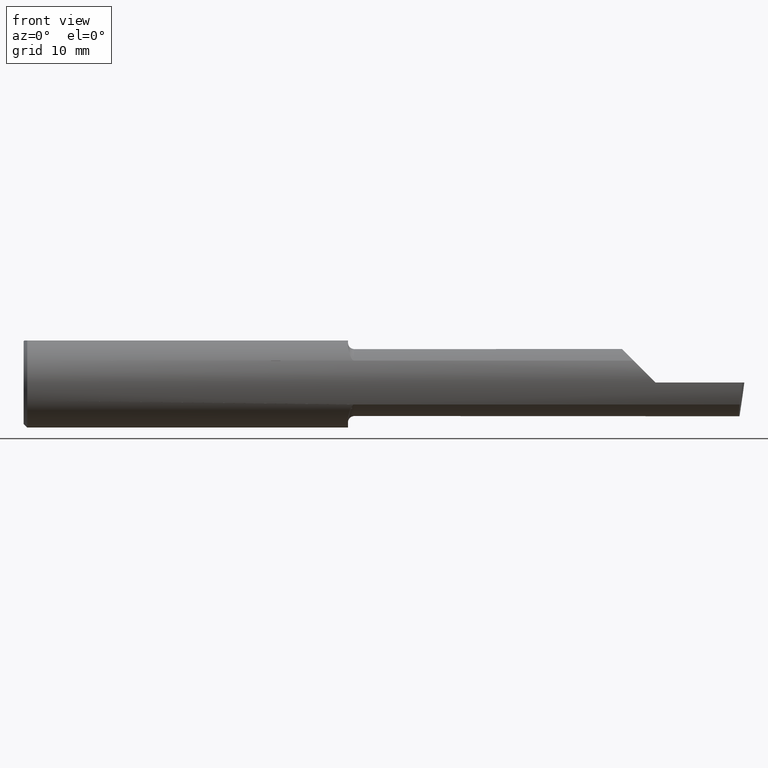
[diagram: clean part render]
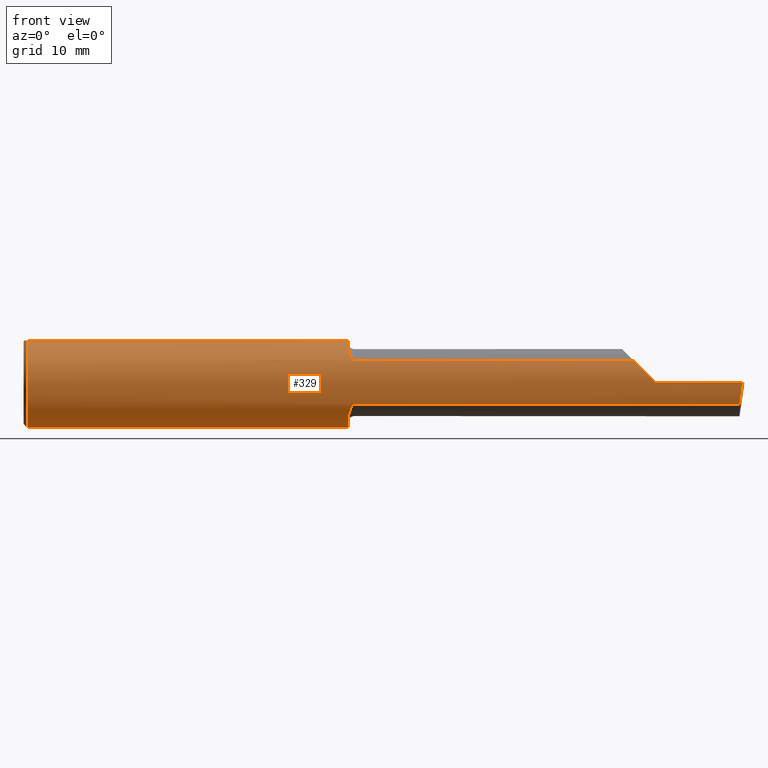
[diagram: same view with one face highlighted and labeled with its STEP entity id]
A machine part, front view. The second image highlights one B-rep face of the part: STEP entity #329.
In plain terms, the highlighted cylindrical surface (partial cylindrical patch) has radius 4.7587 mm, axis along (-1, -0, -0).
Its self-contained STEP definition (entity closure, byte-faithful):
#8 = VERTEX_POINT ( 'NONE', #289 ) ;
#14 = EDGE_CURVE ( 'NONE', #393, #8, #505, .T. ) ;
#22 = CYLINDRICAL_SURFACE ( 'NONE', #203, 0.1873499999999999888 ) ;
#23 = EDGE_CURVE ( 'NONE', #37, #525, #187, .T. ) ;
#36 = DIRECTION ( 'NONE',  ( 1.000000000000000000, 5.691349986800549142E-18, 0.0000000000000000000 ) ) ;
#37 = VERTEX_POINT ( 'NONE', #223 ) ;
#50 = VECTOR ( 'NONE', #416, 39.37007874015748143 ) ;
#51 = DIRECTION ( 'NONE',  ( 0.0000000000000000000, 1.000000000000000000, 0.0000000000000000000 ) ) ;
#83 = DIRECTION ( 'NONE',  ( -1.000000000000000000, -0.0000000000000000000, -0.0000000000000000000 ) ) ;
#91 = LINE ( 'NONE', #585, #50 ) ;
#92 = CARTESIAN_POINT ( 'NONE',  ( 1.350000000000000533, -0.1045082199249680460, -0.1557306416133594773 ) ) ;
#107 = ORIENTED_EDGE ( 'NONE', *, *, #153, .F. ) ;
#111 = ORIENTED_EDGE ( 'NONE', *, *, #421, .T. ) ;
#113 = CARTESIAN_POINT ( 'NONE',  ( 1.367975941902153769, -0.1612443294219079171, -0.09540922431498234657 ) ) ;
#115 = CARTESIAN_POINT ( 'NONE',  ( 2.538695632261437130, -0.1635956445993032027, 0.09130436773856151489 ) ) ;
#118 = CARTESIAN_POINT ( 'NONE',  ( 0.01499999999999997863, -0.06597272163553657975, 0.1753499999999999781 ) ) ;
#119 = EDGE_CURVE ( 'NONE', #525, #408, #159, .T. ) ;
#130 = CARTESIAN_POINT ( 'NONE',  ( 1.350000000000000089, 0.0000000000000000000, 0.0000000000000000000 ) ) ;
#134 = AXIS2_PLACEMENT_3D ( 'NONE', #482, #554, #495 ) ;
#149 = FACE_OUTER_BOUND ( 'NONE', #336, .T. ) ;
#152 = CARTESIAN_POINT ( 'NONE',  ( 1.375000000000000000, -0.1635956445993028141, 0.09130436773856195898 ) ) ;
#153 = EDGE_CURVE ( 'NONE', #37, #393, #575, .T. ) ;
#155 = CARTESIAN_POINT ( 'NONE',  ( 1.375000000000000000, -0.1635956445993028141, 0.09130436773856195898 ) ) ;
#158 = CARTESIAN_POINT ( 'NONE',  ( 2.017499999999999627, -0.1635956445993030084, -0.09130436773856182020 ) ) ;
#159 = LINE ( 'NONE', #337, #434 ) ;
#161 = CARTESIAN_POINT ( 'NONE',  ( 1.372800914500664771, -0.1635956445997548414, 0.09130436773775266190 ) ) ;
#162 = LINE ( 'NONE', #547, #386 ) ;
#165 = ORIENTED_EDGE ( 'NONE', *, *, #14, .F. ) ;
#166 = CIRCLE ( 'NONE', #273, 0.1873499999999999888 ) ;
#167 = AXIS2_PLACEMENT_3D ( 'NONE', #245, #36, #51 ) ;
#168 = CARTESIAN_POINT ( 'NONE',  ( 1.370903862568969123, -0.1628809688430619684, 0.09258733509388514249 ) ) ;
#170 = CARTESIAN_POINT ( 'NONE',  ( 1.368001859868116954, -0.1612625562479369501, 0.09537826053888209810 ) ) ;
#173 = CARTESIAN_POINT ( 'NONE',  ( 1.366855994529494023, -0.1603175578889966257, 0.09696363432848485731 ) ) ;
#174 = CARTESIAN_POINT ( 'NONE',  ( 1.363764108097883510, -0.1573043405450769150, 0.1018329020719639239 ) ) ;
#176 = CARTESIAN_POINT ( 'NONE',  ( 1.362204638458737405, -0.1550630761760522225, 0.1052254855377564996 ) ) ;
#179 = CARTESIAN_POINT ( 'NONE',  ( 1.358072954143140221, -0.1479074971576197217, 0.1152872342625233248 ) ) ;
#182 = CARTESIAN_POINT ( 'NONE',  ( 1.356142321956750996, -0.1426151417460929660, 0.1217894822571234520 ) ) ;
#184 = CARTESIAN_POINT ( 'NONE',  ( 1.353025912205683357, -0.1310442973014113721, 0.1341609063345044484 ) ) ;
#185 = DIRECTION ( 'NONE',  ( -1.000000000000000000, -5.691349986800549142E-18, -0.0000000000000000000 ) ) ;
#186 = CARTESIAN_POINT ( 'NONE',  ( 1.351891754936544787, -0.1247344934163566177, 0.1400506178720502537 ) ) ;
#187 =( BOUNDED_CURVE ( )  B_SPLINE_CURVE ( 3, ( #283, #277, #334, #238 ),
 .UNSPECIFIED., .F., .F. ) 
 B_SPLINE_CURVE_WITH_KNOTS ( ( 4, 4 ),
 ( 0.8516985021653838972, 1.360746882514818790 ),
 .UNSPECIFIED. ) 
 CURVE ( )  GEOMETRIC_REPRESENTATION_ITEM ( )  RATIONAL_B_SPLINE_CURVE ( ( 1.000000000000000000, 0.9785221379938656705, 0.9785221379938656705, 1.000000000000000000 ) ) 
 REPRESENTATION_ITEM ( '' )  );
#188 = CARTESIAN_POINT ( 'NONE',  ( 1.350383728133730532, -0.1114837668894150813, 0.1508119329971097655 ) ) ;
#194 = VERTEX_POINT ( 'NONE', #483 ) ;
#196 = ORIENTED_EDGE ( 'NONE', *, *, #410, .F. ) ;
#198 = AXIS2_PLACEMENT_3D ( 'NONE', #130, #550, #551 ) ;
#203 = AXIS2_PLACEMENT_3D ( 'NONE', #465, #467, #461 ) ;
#205 = CARTESIAN_POINT ( 'NONE',  ( 1.350000000000000311, -0.1045012500212953166, 0.1557348687830035772 ) ) ;
#223 = CARTESIAN_POINT ( 'NONE',  ( 2.981080296960511244, -0.1635956445993030084, -0.09130436773856182020 ) ) ;
#227 =( BOUNDED_CURVE ( )  B_SPLINE_CURVE ( 3, ( #566, #555, #568, #115 ),
 .UNSPECIFIED., .F., .T. ) 
 B_SPLINE_CURVE_WITH_KNOTS ( ( 4, 4 ),
 ( 4.712388980384689674, 5.221437360734123345 ),
 .UNSPECIFIED. ) 
 CURVE ( )  GEOMETRIC_REPRESENTATION_ITEM ( )  RATIONAL_B_SPLINE_CURVE ( ( 1.000000000000000000, 0.9785221379938657815, 0.9785221379938657815, 1.000000000000000000 ) ) 
 REPRESENTATION_ITEM ( '' )  );
#232 = CARTESIAN_POINT ( 'NONE',  ( 1.350000000000000089, -0.09715400696864118224, 0.1601908905959924245 ) ) ;
#235 = CARTESIAN_POINT ( 'NONE',  ( 1.350000000000000089, -0.09715400696864118224, -0.1601908905959924245 ) ) ;
#238 = CARTESIAN_POINT ( 'NONE',  ( 2.991672876941000592, -0.1873499999999999888, -6.711400925391220565E-17 ) ) ;
#245 = CARTESIAN_POINT ( 'NONE',  ( 1.350000000000000089, 0.0000000000000000000, 0.0000000000000000000 ) ) ;
#246 = ORIENTED_EDGE ( 'NONE', *, *, #23, .T. ) ;
#247 = LINE ( 'NONE', #318, #312 ) ;
#257 = DIRECTION ( 'NONE',  ( 0.0000000000000000000, 0.0000000000000000000, 1.000000000000000000 ) ) ;
#268 = EDGE_CURVE ( 'NONE', #194, #287, #451, .T. ) ;
#273 = AXIS2_PLACEMENT_3D ( 'NONE', #308, #327, #257 ) ;
#275 = ORIENTED_EDGE ( 'NONE', *, *, #480, .F. ) ;
#277 = CARTESIAN_POINT ( 'NONE',  ( 2.984117089522341892, -0.1792580844883771007, -0.06324101202936142918 ) ) ;
#283 = CARTESIAN_POINT ( 'NONE',  ( 2.981080296960511244, -0.1635956445993030084, -0.09130436773856182020 ) ) ;
#287 = VERTEX_POINT ( 'NONE', #152 ) ;
#289 = CARTESIAN_POINT ( 'NONE',  ( 1.350000000000000089, -0.09715400696864118224, -0.1601908905959924245 ) ) ;
#291 = CIRCLE ( 'NONE', #198, 0.1873499999999999888 ) ;
#296 = VECTOR ( 'NONE', #185, 39.37007874015748143 ) ;
#299 = ORIENTED_EDGE ( 'NONE', *, *, #362, .F. ) ;
#307 = ORIENTED_EDGE ( 'NONE', *, *, #567, .F. ) ;
#308 = CARTESIAN_POINT ( 'NONE',  ( 0.01499999999999999424, 0.0000000000000000000, 0.0000000000000000000 ) ) ;
#312 = VECTOR ( 'NONE', #316, 39.37007874015748143 ) ;
#314 = CARTESIAN_POINT ( 'NONE',  ( 1.370881499230869771, -0.1628722075910989942, -0.09260290410947885631 ) ) ;
#316 = DIRECTION ( 'NONE',  ( 1.000000000000000000, 0.0000000000000000000, 0.0000000000000000000 ) ) ;
#318 = CARTESIAN_POINT ( 'NONE',  ( 0.0000000000000000000, 0.06597272163553677404, 0.1753499999999999226 ) ) ;
#320 = CARTESIAN_POINT ( 'NONE',  ( 1.372779935319434097, -0.1635956445993030639, -0.09130436773856182020 ) ) ;
#327 = DIRECTION ( 'NONE',  ( -1.000000000000000000, -0.0000000000000000000, -0.0000000000000000000 ) ) ;
#329 = ADVANCED_FACE ( 'NONE', ( #149 ), #22, .T. ) ;
#334 = CARTESIAN_POINT ( 'NONE',  ( 2.987725449370730590, -0.1873500000000000165, -0.03213820089768519572 ) ) ;
#336 = EDGE_LOOP ( 'NONE', ( #107, #246, #426, #597, #521, #513, #196, #427, #307, #299, #111, #275, #165 ) ) ;
#337 = CARTESIAN_POINT ( 'NONE',  ( 5.044671737413194975E-32, -0.1873499999999999610, 3.563723795045361633E-16 ) ) ;
#355 = CARTESIAN_POINT ( 'NONE',  ( 1.375000000000000000, -0.1635956445993029529, -0.09130436773856182020 ) ) ;
#361 = CARTESIAN_POINT ( 'NONE',  ( 1.366814909379088228, -0.1602818635245156498, -0.09702252612905316875 ) ) ;
#362 = EDGE_CURVE ( 'NONE', #538, #398, #464, .T. ) ;
#363 = EDGE_CURVE ( 'NONE', #287, #535, #91, .T. ) ;
#366 = CARTESIAN_POINT ( 'NONE',  ( 1.363743174082349796, -0.1572750258711007598, -0.1018777902325215673 ) ) ;
#370 = CARTESIAN_POINT ( 'NONE',  ( 1.362184598714913042, -0.1550322129197695131, -0.1052705638704084928 ) ) ;
#374 = CARTESIAN_POINT ( 'NONE',  ( 1.358068207442170383, -0.1478915270140208349, -0.1153063024254925573 ) ) ;
#386 = VECTOR ( 'NONE', #83, 39.37007874015748143 ) ;
#389 = VERTEX_POINT ( 'NONE', #118 ) ;
#393 = VERTEX_POINT ( 'NONE', #571 ) ;
#396 = CARTESIAN_POINT ( 'NONE',  ( 1.356145841430604237, -0.1426194794824337253, -0.1217813759115469463 ) ) ;
#398 = VERTEX_POINT ( 'NONE', #414 ) ;
#400 = CARTESIAN_POINT ( 'NONE',  ( 1.353041727949557460, -0.1311116946065050137, -0.1340922927843371804 ) ) ;
#407 = CARTESIAN_POINT ( 'NONE',  ( 1.351903396790307355, -0.1248165254919060274, -0.1399798634953947629 ) ) ;
#408 = VERTEX_POINT ( 'NONE', #431 ) ;
#409 = CARTESIAN_POINT ( 'NONE',  ( 1.350384441902395372, -0.1115101367984838443, -0.1507946173152225067 ) ) ;
#410 = EDGE_CURVE ( 'NONE', #557, #194, #546, .T. ) ;
#414 = CARTESIAN_POINT ( 'NONE',  ( 0.01499999999999999424, 0.0000000000000000000, -0.1873499999999999888 ) ) ;
#416 = DIRECTION ( 'NONE',  ( 1.000000000000000000, 5.691349986800549142E-18, 0.0000000000000000000 ) ) ;
#421 = EDGE_CURVE ( 'NONE', #538, #528, #247, .T. ) ;
#424 = EDGE_CURVE ( 'NONE', #557, #389, #162, .T. ) ;
#426 = ORIENTED_EDGE ( 'NONE', *, *, #119, .T. ) ;
#427 = ORIENTED_EDGE ( 'NONE', *, *, #424, .T. ) ;
#431 = CARTESIAN_POINT ( 'NONE',  ( 2.629999999999999893, -0.1873499999999999888, -1.592040838891560883E-17 ) ) ;
#434 = VECTOR ( 'NONE', #487, 39.37007874015748143 ) ;
#451 = B_SPLINE_CURVE_WITH_KNOTS ( 'NONE', 3,
 ( #232, #205, #188, #186, #184, #182, #179, #176, #174, #173, #170, #168, #161, #155 ),
 .UNSPECIFIED., .F., .F.,
 ( 4, 2, 2, 2, 2, 2, 4 ),
 ( 0.0002471551878304217224, 0.0008987327522055606026, 0.001550310316580699645, 0.002201887880955838254, 0.002527676663143406475, 0.002690571054237190368, 0.002853465445330974262 ),
 .UNSPECIFIED. ) ;
#461 = DIRECTION ( 'NONE',  ( 0.0000000000000000000, 0.0000000000000000000, 1.000000000000000000 ) ) ;
#464 = CIRCLE ( 'NONE', #134, 0.1873499999999999888 ) ;
#465 = CARTESIAN_POINT ( 'NONE',  ( 0.0000000000000000000, 0.0000000000000000000, 0.0000000000000000000 ) ) ;
#467 = DIRECTION ( 'NONE',  ( -1.000000000000000000, -0.0000000000000000000, -0.0000000000000000000 ) ) ;
#480 = EDGE_CURVE ( 'NONE', #8, #528, #291, .T. ) ;
#482 = CARTESIAN_POINT ( 'NONE',  ( 0.01499999999999999424, 0.0000000000000000000, 0.0000000000000000000 ) ) ;
#483 = CARTESIAN_POINT ( 'NONE',  ( 1.350000000000000089, -0.09715400696864118224, 0.1601908905959924245 ) ) ;
#487 = DIRECTION ( 'NONE',  ( -1.000000000000000000, -0.0000000000000000000, -0.0000000000000000000 ) ) ;
#495 = DIRECTION ( 'NONE',  ( 0.0000000000000000000, 0.0000000000000000000, 1.000000000000000000 ) ) ;
#497 = CARTESIAN_POINT ( 'NONE',  ( 1.350000000000000089, -0.06597272163553659363, 0.1753499999999999781 ) ) ;
#505 = B_SPLINE_CURVE_WITH_KNOTS ( 'NONE', 3,
 ( #355, #320, #314, #113, #361, #366, #370, #374, #396, #400, #407, #409, #92, #235 ),
 .UNSPECIFIED., .F., .F.,
 ( 4, 2, 2, 2, 2, 2, 4 ),
 ( 1.968340875534775581E-07, 0.0001667114270246263495, 0.0003332260199616992290, 0.0006662552058358550168, 0.001332313577584160521, 0.001998371949332466025, 0.002664430321080771963 ),
 .UNSPECIFIED. ) ;
#513 = ORIENTED_EDGE ( 'NONE', *, *, #268, .F. ) ;
#521 = ORIENTED_EDGE ( 'NONE', *, *, #363, .F. ) ;
#525 = VERTEX_POINT ( 'NONE', #537 ) ;
#527 = EDGE_CURVE ( 'NONE', #408, #535, #227, .T. ) ;
#528 = VERTEX_POINT ( 'NONE', #562 ) ;
#535 = VERTEX_POINT ( 'NONE', #583 ) ;
#537 = CARTESIAN_POINT ( 'NONE',  ( 2.991672876941000592, -0.1873499999999999888, -6.711400925391220565E-17 ) ) ;
#538 = VERTEX_POINT ( 'NONE', #588 ) ;
#546 = CIRCLE ( 'NONE', #167, 0.1873499999999999888 ) ;
#547 = CARTESIAN_POINT ( 'NONE',  ( 0.0000000000000000000, -0.06597272163553671853, 0.1753499999999999226 ) ) ;
#550 = DIRECTION ( 'NONE',  ( 1.000000000000000000, 5.691349986800549142E-18, 0.0000000000000000000 ) ) ;
#551 = DIRECTION ( 'NONE',  ( 0.0000000000000000000, 1.000000000000000000, 0.0000000000000000000 ) ) ;
#554 = DIRECTION ( 'NONE',  ( -1.000000000000000000, -0.0000000000000000000, -0.0000000000000000000 ) ) ;
#555 = CARTESIAN_POINT ( 'NONE',  ( 2.597861799102314073, -0.1873500000000000165, 0.03213820089768498756 ) ) ;
#557 = VERTEX_POINT ( 'NONE', #497 ) ;
#562 = CARTESIAN_POINT ( 'NONE',  ( 1.350000000000000089, 0.06597272163553680180, 0.1753499999999999781 ) ) ;
#566 = CARTESIAN_POINT ( 'NONE',  ( 2.629999999999999893, -0.1873499999999999888, -1.592040838891560883E-17 ) ) ;
#567 = EDGE_CURVE ( 'NONE', #398, #389, #166, .T. ) ;
#568 = CARTESIAN_POINT ( 'NONE',  ( 2.566758987970637840, -0.1792580844883771840, 0.06324101202936116550 ) ) ;
#571 = CARTESIAN_POINT ( 'NONE',  ( 1.375000000000000000, -0.1635956445993029529, -0.09130436773856182020 ) ) ;
#575 = LINE ( 'NONE', #158, #296 ) ;
#583 = CARTESIAN_POINT ( 'NONE',  ( 2.538695632261437130, -0.1635956445993032027, 0.09130436773856151489 ) ) ;
#585 = CARTESIAN_POINT ( 'NONE',  ( 2.017499999999999627, -0.1635956445993030084, 0.09130436773856182020 ) ) ;
#588 = CARTESIAN_POINT ( 'NONE',  ( 0.01499999999999999424, 0.06597272163553677404, 0.1753499999999999226 ) ) ;
#597 = ORIENTED_EDGE ( 'NONE', *, *, #527, .T. ) ;